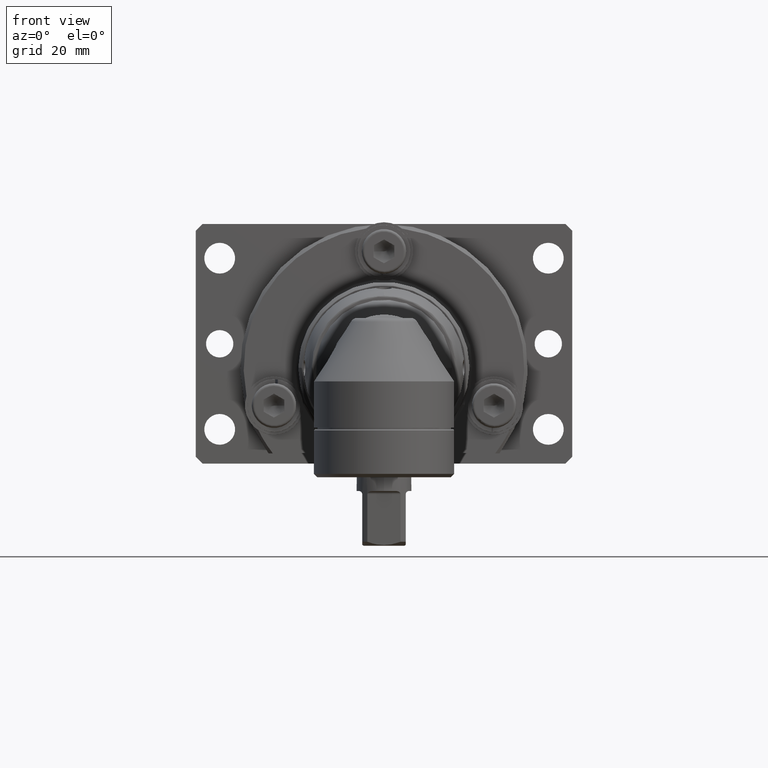
[diagram: clean part render]
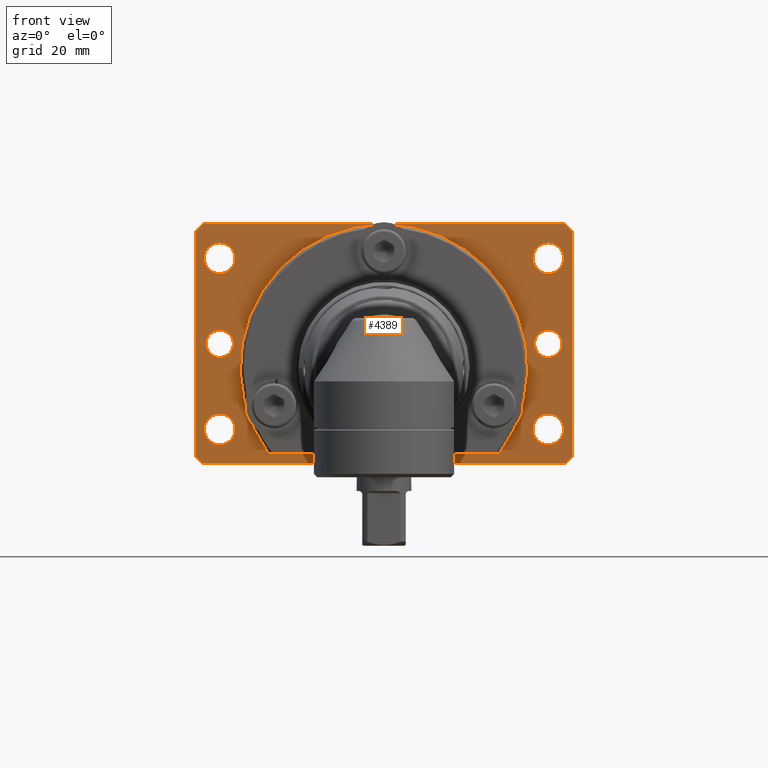
[diagram: same view with one face highlighted and labeled with its STEP entity id]
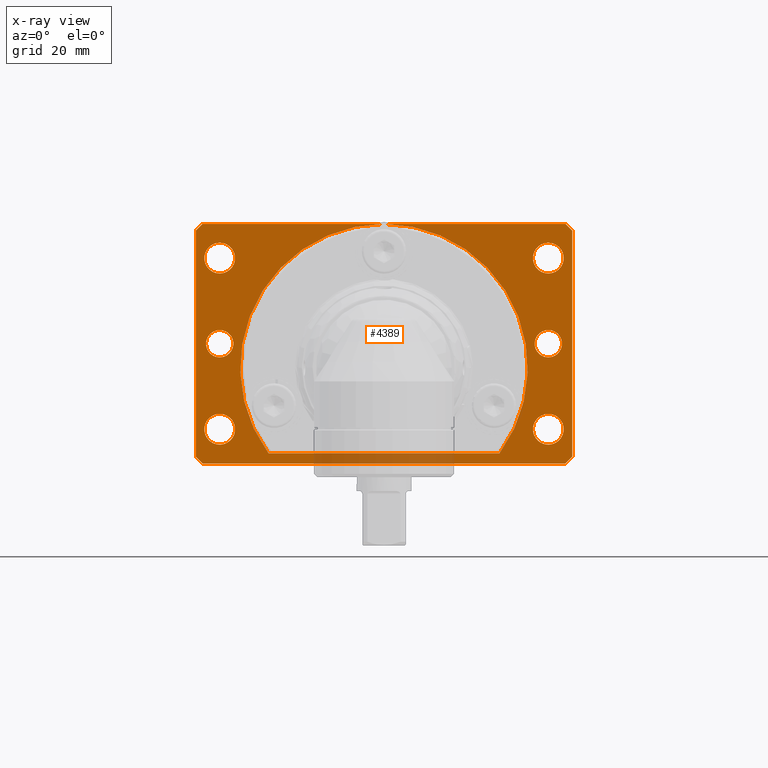
[diagram: x-ray of the same camera — body ghosted, the highlighted face saturated]
A machine part, front view. The second image highlights one B-rep face of the part: STEP entity #4389.
The next image is the same camera in x-ray: the body ghosted, the highlighted face saturated — about 5% of this face is hidden behind the body in this view.
In plain terms, the highlighted planar face has unit normal (0, -1, 0).
Its self-contained STEP definition (entity closure, byte-faithful):
#222=LINE('',#8255,#429);
#260=LINE('',#8551,#467);
#264=LINE('',#8560,#471);
#282=LINE('',#8685,#489);
#285=LINE('',#8691,#492);
#289=LINE('',#8699,#496);
#291=LINE('',#8702,#498);
#295=LINE('',#8709,#502);
#296=LINE('',#8710,#503);
#297=LINE('',#8712,#504);
#429=VECTOR('',#5607,10.);
#467=VECTOR('',#5877,10.);
#471=VECTOR('',#5883,10.);
#489=VECTOR('',#6033,10.);
#492=VECTOR('',#6038,10.);
#496=VECTOR('',#6044,10.);
#498=VECTOR('',#6048,10.);
#502=VECTOR('',#6054,10.);
#503=VECTOR('',#6055,10.);
#504=VECTOR('',#6058,10.);
#703=FACE_BOUND('',#1156,.T.);
#704=FACE_BOUND('',#1157,.T.);
#705=FACE_BOUND('',#1158,.T.);
#706=FACE_BOUND('',#1159,.T.);
#707=FACE_BOUND('',#1160,.T.);
#708=FACE_BOUND('',#1161,.T.);
#871=FACE_OUTER_BOUND('',#1155,.T.);
#1155=EDGE_LOOP('',(#3612,#3613,#3614,#3615,#3616,#3617,#3618,#3619,#3620,
#3621,#3622,#3623));
#1156=EDGE_LOOP('',(#3624));
#1157=EDGE_LOOP('',(#3625));
#1158=EDGE_LOOP('',(#3626));
#1159=EDGE_LOOP('',(#3627));
#1160=EDGE_LOOP('',(#3628));
#1161=EDGE_LOOP('',(#3629));
#1382=CIRCLE('',#4687,42.);
#1383=CIRCLE('',#4688,42.);
#1487=CIRCLE('',#4844,4.5);
#1490=CIRCLE('',#4848,4.5);
#1493=CIRCLE('',#4852,4.5);
#1496=CIRCLE('',#4856,4.5);
#1508=CIRCLE('',#4872,4.);
#1511=CIRCLE('',#4876,4.);
#1790=VERTEX_POINT('',#8174);
#1793=VERTEX_POINT('',#8179);
#1794=VERTEX_POINT('',#8181);
#1901=VERTEX_POINT('',#8547);
#1903=VERTEX_POINT('',#8550);
#1905=VERTEX_POINT('',#8556);
#1907=VERTEX_POINT('',#8559);
#1911=VERTEX_POINT('',#8569);
#1914=VERTEX_POINT('',#8577);
#1917=VERTEX_POINT('',#8585);
#1920=VERTEX_POINT('',#8593);
#1932=VERTEX_POINT('',#8625);
#1935=VERTEX_POINT('',#8633);
#1948=VERTEX_POINT('',#8684);
#1950=VERTEX_POINT('',#8690);
#1952=VERTEX_POINT('',#8696);
#1955=VERTEX_POINT('',#8706);
#2311=EDGE_CURVE('',#1794,#1793,#1382,.T.);
#2312=EDGE_CURVE('',#1790,#1794,#1383,.T.);
#2346=EDGE_CURVE('',#1793,#1790,#222,.T.);
#2468=EDGE_CURVE('',#1903,#1901,#260,.T.);
#2472=EDGE_CURVE('',#1907,#1905,#264,.T.);
#2478=EDGE_CURVE('',#1911,#1911,#1487,.T.);
#2482=EDGE_CURVE('',#1914,#1914,#1490,.T.);
#2486=EDGE_CURVE('',#1917,#1917,#1493,.T.);
#2490=EDGE_CURVE('',#1920,#1920,#1496,.T.);
#2506=EDGE_CURVE('',#1932,#1932,#1508,.T.);
#2510=EDGE_CURVE('',#1935,#1935,#1511,.T.);
#2537=EDGE_CURVE('',#1903,#1948,#282,.T.);
#2540=EDGE_CURVE('',#1950,#1901,#285,.T.);
#2544=EDGE_CURVE('',#1950,#1952,#289,.T.);
#2546=EDGE_CURVE('',#1907,#1952,#291,.T.);
#2550=EDGE_CURVE('',#1794,#1948,#295,.T.);
#2551=EDGE_CURVE('',#1955,#1794,#296,.T.);
#2552=EDGE_CURVE('',#1955,#1905,#297,.T.);
#3612=ORIENTED_EDGE('',*,*,#2552,.F.);
#3613=ORIENTED_EDGE('',*,*,#2551,.T.);
#3614=ORIENTED_EDGE('',*,*,#2311,.T.);
#3615=ORIENTED_EDGE('',*,*,#2346,.T.);
#3616=ORIENTED_EDGE('',*,*,#2312,.T.);
#3617=ORIENTED_EDGE('',*,*,#2550,.T.);
#3618=ORIENTED_EDGE('',*,*,#2537,.F.);
#3619=ORIENTED_EDGE('',*,*,#2468,.T.);
#3620=ORIENTED_EDGE('',*,*,#2540,.F.);
#3621=ORIENTED_EDGE('',*,*,#2544,.T.);
#3622=ORIENTED_EDGE('',*,*,#2546,.F.);
#3623=ORIENTED_EDGE('',*,*,#2472,.T.);
#3624=ORIENTED_EDGE('',*,*,#2510,.T.);
#3625=ORIENTED_EDGE('',*,*,#2506,.T.);
#3626=ORIENTED_EDGE('',*,*,#2490,.T.);
#3627=ORIENTED_EDGE('',*,*,#2486,.T.);
#3628=ORIENTED_EDGE('',*,*,#2482,.T.);
#3629=ORIENTED_EDGE('',*,*,#2478,.T.);
#4171=PLANE('',#4916);
#4389=ADVANCED_FACE('',(#871,#703,#704,#705,#706,#707,#708),#4171,.T.);
#4687=AXIS2_PLACEMENT_3D('',#8182,#5529,#5530);
#4688=AXIS2_PLACEMENT_3D('',#8183,#5531,#5532);
#4844=AXIS2_PLACEMENT_3D('',#8571,#5893,#5894);
#4848=AXIS2_PLACEMENT_3D('',#8579,#5902,#5903);
#4852=AXIS2_PLACEMENT_3D('',#8587,#5911,#5912);
#4856=AXIS2_PLACEMENT_3D('',#8595,#5920,#5921);
#4872=AXIS2_PLACEMENT_3D('',#8627,#5956,#5957);
#4876=AXIS2_PLACEMENT_3D('',#8635,#5965,#5966);
#4916=AXIS2_PLACEMENT_3D('',#8721,#6069,#6070);
#5529=DIRECTION('center_axis',(-3.53651794369473E-16,1.,-1.88737914186277E-15));
#5530=DIRECTION('ref_axis',(1.73472347597682E-16,-1.88737914186277E-15,
-1.));
#5531=DIRECTION('center_axis',(-3.53651794369473E-16,1.,-1.88737914186277E-15));
#5532=DIRECTION('ref_axis',(1.73472347597682E-16,-1.88737914186277E-15,
-1.));
#5607=DIRECTION('',(-1.,-3.53651794369473E-16,-4.18867494143085E-17));
#5877=DIRECTION('',(-1.76813164235178E-16,-1.88737914186277E-15,-1.));
#5883=DIRECTION('',(1.76813164235178E-16,1.88737914186277E-15,1.));
#5893=DIRECTION('center_axis',(-4.73983281220064E-16,1.,-1.88737914186277E-15));
#5894=DIRECTION('ref_axis',(-4.99305328494461E-17,-1.88737914186277E-15,
-1.));
#5902=DIRECTION('center_axis',(-4.73983281220064E-16,1.,-1.88737914186277E-15));
#5903=DIRECTION('ref_axis',(-4.99305328494461E-17,-1.88737914186277E-15,
-1.));
#5911=DIRECTION('center_axis',(-4.73983281220064E-16,1.,-1.88737914186277E-15));
#5912=DIRECTION('ref_axis',(-4.99305328494461E-17,-1.88737914186277E-15,
-1.));
#5920=DIRECTION('center_axis',(-4.73983281220064E-16,1.,-1.88737914186277E-15));
#5921=DIRECTION('ref_axis',(-4.99305328494461E-17,-1.88737914186277E-15,
-1.));
#5956=DIRECTION('center_axis',(-4.73983281220064E-16,1.,-1.88737914186277E-15));
#5957=DIRECTION('ref_axis',(-4.99305328494461E-17,-1.88737914186277E-15,
-1.));
#5965=DIRECTION('center_axis',(-4.73983281220064E-16,1.,-1.88737914186277E-15));
#5966=DIRECTION('ref_axis',(-4.99305328494461E-17,-1.88737914186277E-15,
-1.));
#6033=DIRECTION('',(0.707106781186546,1.66973538220097E-15,0.707106781186549));
#6038=DIRECTION('',(-0.70710678118655,9.9942179756145E-16,0.707106781186545));
#6044=DIRECTION('',(1.,4.73983281220064E-16,-1.71045771899464E-16));
#6048=DIRECTION('',(-0.707106781186548,-1.66973538220097E-15,-0.707106781186548));
#6054=DIRECTION('',(-1.,-4.73983281220064E-16,2.1141751824947E-16));
#6055=DIRECTION('',(-1.,-4.73983281220064E-16,2.1141751824947E-16));
#6058=DIRECTION('',(0.707106781186549,-9.99421797561452E-16,-0.707106781186546));
#6069=DIRECTION('center_axis',(4.73983281220064E-16,-1.,1.88737914186277E-15));
#6070=DIRECTION('ref_axis',(4.99305328494461E-17,1.88737914186277E-15,1.));
#8174=CARTESIAN_POINT('',(-33.7490740613724,124.499999999999,-25.0000000000002));
#8179=CARTESIAN_POINT('',(33.7490740613724,124.499999999999,-25.0000000000002));
#8181=CARTESIAN_POINT('',(-4.15640657712441E-15,124.5,41.9999999999998));
#8182=CARTESIAN_POINT('Origin',(-1.30381907741256E-14,124.5,-2.35261810033194E-13));
#8183=CARTESIAN_POINT('Origin',(-1.30381907741256E-14,124.5,-2.35261810033194E-13));
#8255=CARTESIAN_POINT('',(16.8745370306862,124.499999999999,-25.0000000000002));
#8547=CARTESIAN_POINT('',(-55.,124.499999999999,-26.0000000000002));
#8550=CARTESIAN_POINT('',(-55.,124.5,39.9999999999998));
#8551=CARTESIAN_POINT('',(-55.,124.5,41.9999999999998));
#8556=CARTESIAN_POINT('',(55.,124.5,39.9999999999998));
#8559=CARTESIAN_POINT('',(55.,124.5,-26.0000000000002));
#8560=CARTESIAN_POINT('',(55.,124.5,-28.0000000000002));
#8569=CARTESIAN_POINT('',(48.,124.5,36.4999999999998));
#8571=CARTESIAN_POINT('Origin',(48.,124.5,31.9999999999998));
#8577=CARTESIAN_POINT('',(-48.,124.5,36.4999999999998));
#8579=CARTESIAN_POINT('Origin',(-48.,124.5,31.9999999999998));
#8585=CARTESIAN_POINT('',(48.,124.5,-13.5000000000002));
#8587=CARTESIAN_POINT('Origin',(48.,124.5,-18.0000000000002));
#8593=CARTESIAN_POINT('',(-48.,124.5,-13.5000000000002));
#8595=CARTESIAN_POINT('Origin',(-48.,124.5,-18.0000000000002));
#8625=CARTESIAN_POINT('',(-48.,124.5,10.9999999999998));
#8627=CARTESIAN_POINT('Origin',(-48.,124.5,6.99999999999977));
#8633=CARTESIAN_POINT('',(48.,124.5,10.9999999999998));
#8635=CARTESIAN_POINT('Origin',(48.,124.5,6.99999999999975));
#8684=CARTESIAN_POINT('',(-53.,124.5,41.9999999999998));
#8685=CARTESIAN_POINT('',(-49.0000000000001,124.5,45.9999999999997));
#8690=CARTESIAN_POINT('',(-53.,124.499999999999,-28.0000000000002));
#8691=CARTESIAN_POINT('',(-48.9999999999999,124.499999999999,-32.0000000000003));
#8696=CARTESIAN_POINT('',(53.,124.5,-28.0000000000002));
#8699=CARTESIAN_POINT('',(-55.,124.499999999999,-28.0000000000002));
#8702=CARTESIAN_POINT('',(49.,124.5,-32.0000000000002));
#8706=CARTESIAN_POINT('',(53.,124.5,41.9999999999998));
#8709=CARTESIAN_POINT('',(55.,124.5,41.9999999999998));
#8710=CARTESIAN_POINT('',(55.,124.5,41.9999999999998));
#8712=CARTESIAN_POINT('',(48.9999999999999,124.5,45.9999999999998));
#8721=CARTESIAN_POINT('Origin',(-1.02314146717343E-14,124.5,6.99999999999977));